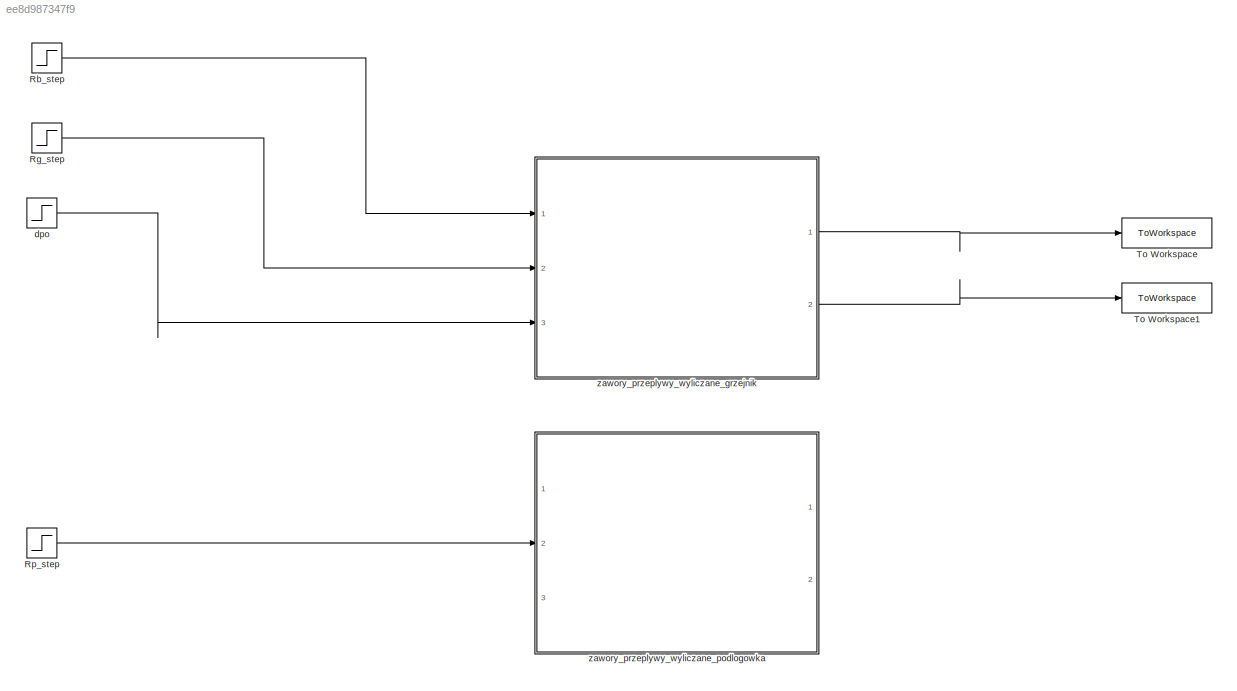
MODEL slx_ee8d987347f9
KIND model
CONFIG AbsTol = auto
CONFIG EnableMultiTasking = off
CONFIG FixedStep = auto
CONFIG MaxStep = auto
CONFIG MinStep = auto
CONFIG RelTol = 1e-3
CONFIG SampleTimeConstraint = Unconstrained
CONFIG SolverName = VariableStepAuto
CONFIG StartTime = 0.0
CONFIG StopTime = 10.0
BLOCK [Step] Rb_step
  After = RzN + dRz_b
  Before = RzN
  SampleTime = 0
  Time = skok_czas
BLOCK [Step] Rg_step
  After = RzN + dRz_g
  Before = RzN
  SampleTime = 0
  Time = skok_czas
BLOCK [Step] Rp_step
  After = RzN + dRz_p
  Before = RzN
  SampleTime = 0
  Time = skok_czas
BLOCK [ToWorkspace] To Workspace
  FixptAsFi = on
  MaxDataPoints = inf
  Ports = [1]
  SampleTime = -1
  VariableName = f_bojler
BLOCK [ToWorkspace] To Workspace1
  FixptAsFi = on
  MaxDataPoints = inf
  Ports = [1]
  SampleTime = -1
  VariableName = f_grzejnik
BLOCK [Step] dpo
  After = dpoN + zmiana_po
  Before = dpoN
  SampleTime = 0
  Time = skok_czas
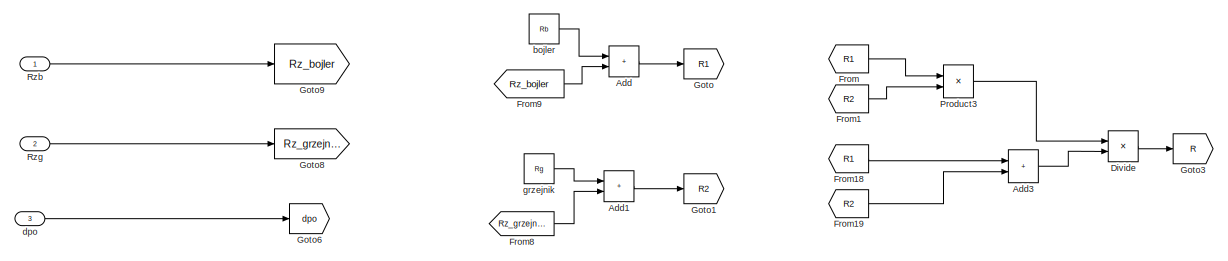
[diagram: zawory_przeplywy_wyliczane_grzejnik - part 1/2, full width, top band]
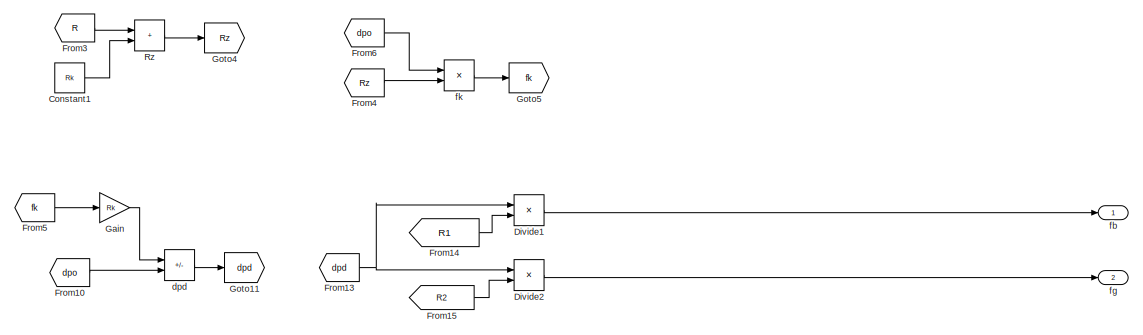
[diagram: zawory_przeplywy_wyliczane_grzejnik - part 2/2, bottom center region]
BLOCK [SubSystem] zawory_przeplywy_wyliczane_grzejnik
  Ports = [3, 2]
  RequestExecContextInheritance = off
BLOCK [Sum] zawory_przeplywy_wyliczane_grzejnik/Add
  IconShape = rectangular
  Ports = [2, 1]
BLOCK [Sum] zawory_przeplywy_wyliczane_grzejnik/Add1
  IconShape = rectangular
  Ports = [2, 1]
BLOCK [Sum] zawory_przeplywy_wyliczane_grzejnik/Add3
  IconShape = rectangular
  Ports = [2, 1]
BLOCK [Constant] zawory_przeplywy_wyliczane_grzejnik/Constant1
  Value = Rk
BLOCK [Product] zawory_przeplywy_wyliczane_grzejnik/Divide
  Inputs = */
  Ports = [2, 1]
BLOCK [Product] zawory_przeplywy_wyliczane_grzejnik/Divide1
  Inputs = */
  Ports = [2, 1]
BLOCK [Product] zawory_przeplywy_wyliczane_grzejnik/Divide2
  Inputs = */
  Ports = [2, 1]
BLOCK [From] zawory_przeplywy_wyliczane_grzejnik/From
  GotoTag = R1
BLOCK [From] zawory_przeplywy_wyliczane_grzejnik/From1
  GotoTag = R2
BLOCK [From] zawory_przeplywy_wyliczane_grzejnik/From10
  GotoTag = dpo
BLOCK [From] zawory_przeplywy_wyliczane_grzejnik/From13
  GotoTag = dpd
BLOCK [From] zawory_przeplywy_wyliczane_grzejnik/From14
  GotoTag = R1
BLOCK [From] zawory_przeplywy_wyliczane_grzejnik/From15
  GotoTag = R2
BLOCK [From] zawory_przeplywy_wyliczane_grzejnik/From18
  GotoTag = R1
BLOCK [From] zawory_przeplywy_wyliczane_grzejnik/From19
  GotoTag = R2
BLOCK [From] zawory_przeplywy_wyliczane_grzejnik/From3
  GotoTag = R
BLOCK [From] zawory_przeplywy_wyliczane_grzejnik/From4
  GotoTag = Rz
BLOCK [From] zawory_przeplywy_wyliczane_grzejnik/From5
  GotoTag = fk
BLOCK [From] zawory_przeplywy_wyliczane_grzejnik/From6
  GotoTag = dpo
BLOCK [From] zawory_przeplywy_wyliczane_grzejnik/From8
  GotoTag = Rz_grzejnik
BLOCK [From] zawory_przeplywy_wyliczane_grzejnik/From9
  GotoTag = Rz_bojler
BLOCK [Gain] zawory_przeplywy_wyliczane_grzejnik/Gain
  Gain = Rk
BLOCK [Goto] zawory_przeplywy_wyliczane_grzejnik/Goto
  GotoTag = R1
BLOCK [Goto] zawory_przeplywy_wyliczane_grzejnik/Goto1
  GotoTag = R2
BLOCK [Goto] zawory_przeplywy_wyliczane_grzejnik/Goto11
  GotoTag = dpd
BLOCK [Goto] zawory_przeplywy_wyliczane_grzejnik/Goto3
  GotoTag = R
BLOCK [Goto] zawory_przeplywy_wyliczane_grzejnik/Goto4
  GotoTag = Rz
BLOCK [Goto] zawory_przeplywy_wyliczane_grzejnik/Goto5
  GotoTag = fk
BLOCK [Goto] zawory_przeplywy_wyliczane_grzejnik/Goto6
  GotoTag = dpo
BLOCK [Goto] zawory_przeplywy_wyliczane_grzejnik/Goto8
  GotoTag = Rz_grzejnik
BLOCK [Goto] zawory_przeplywy_wyliczane_grzejnik/Goto9
  GotoTag = Rz_bojler
BLOCK [Product] zawory_przeplywy_wyliczane_grzejnik/Product3
  Ports = [2, 1]
BLOCK [Sum] zawory_przeplywy_wyliczane_grzejnik/Rz
  IconShape = rectangular
  Ports = [2, 1]
BLOCK [Inport] zawory_przeplywy_wyliczane_grzejnik/Rzb
BLOCK [Inport] zawory_przeplywy_wyliczane_grzejnik/Rzg
  Port = 2
BLOCK [Constant] zawory_przeplywy_wyliczane_grzejnik/bojler
  Value = Rb
BLOCK [Sum] zawory_przeplywy_wyliczane_grzejnik/dpd
  IconShape = rectangular
  Inputs = -+
  Ports = [2, 1]
BLOCK [Inport] zawory_przeplywy_wyliczane_grzejnik/dpo
  Port = 3
BLOCK [Outport] zawory_przeplywy_wyliczane_grzejnik/fb
BLOCK [Outport] zawory_przeplywy_wyliczane_grzejnik/fg
  Port = 2
BLOCK [Product] zawory_przeplywy_wyliczane_grzejnik/fk
  Inputs = */
  Ports = [2, 1]
BLOCK [Constant] zawory_przeplywy_wyliczane_grzejnik/grzejnik
  Value = Rg
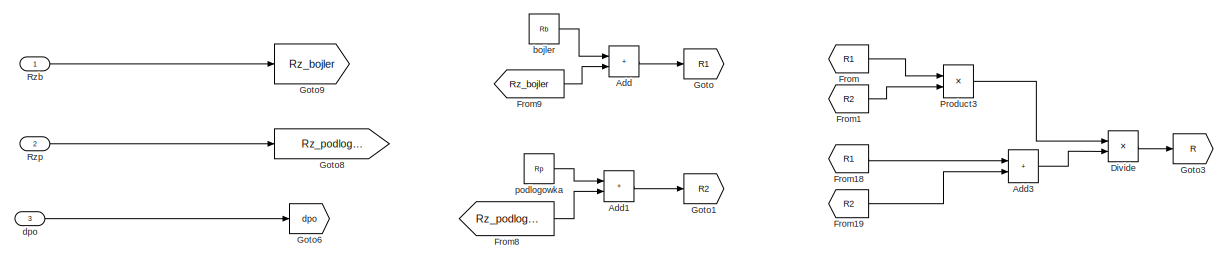
[diagram: zawory_przeplywy_wyliczane_podlogowka - part 1/2, full width, top band]
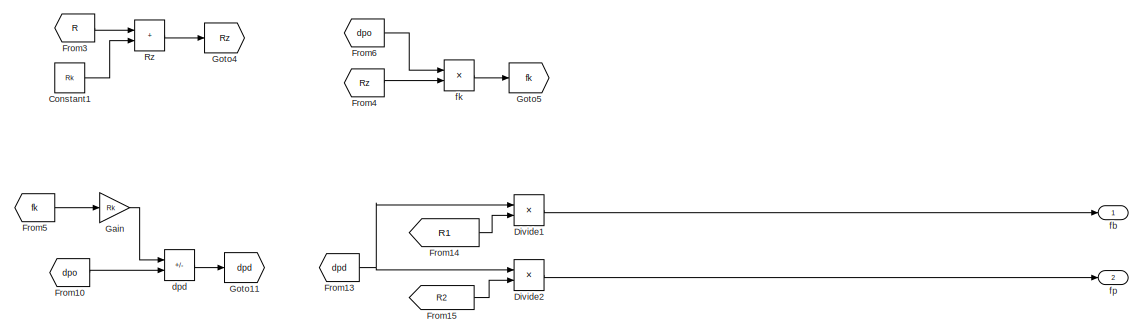
[diagram: zawory_przeplywy_wyliczane_podlogowka - part 2/2, bottom center region]
BLOCK [SubSystem] zawory_przeplywy_wyliczane_podlogowka
  Ports = [3, 2]
  RequestExecContextInheritance = off
BLOCK [Sum] zawory_przeplywy_wyliczane_podlogowka/Add
  IconShape = rectangular
  Ports = [2, 1]
BLOCK [Sum] zawory_przeplywy_wyliczane_podlogowka/Add1
  IconShape = rectangular
  Ports = [2, 1]
BLOCK [Sum] zawory_przeplywy_wyliczane_podlogowka/Add3
  IconShape = rectangular
  Ports = [2, 1]
BLOCK [Constant] zawory_przeplywy_wyliczane_podlogowka/Constant1
  Value = Rk
BLOCK [Product] zawory_przeplywy_wyliczane_podlogowka/Divide
  Inputs = */
  Ports = [2, 1]
BLOCK [Product] zawory_przeplywy_wyliczane_podlogowka/Divide1
  Inputs = */
  Ports = [2, 1]
BLOCK [Product] zawory_przeplywy_wyliczane_podlogowka/Divide2
  Inputs = */
  Ports = [2, 1]
BLOCK [From] zawory_przeplywy_wyliczane_podlogowka/From
  GotoTag = R1
BLOCK [From] zawory_przeplywy_wyliczane_podlogowka/From1
  GotoTag = R2
BLOCK [From] zawory_przeplywy_wyliczane_podlogowka/From10
  GotoTag = dpo
BLOCK [From] zawory_przeplywy_wyliczane_podlogowka/From13
  GotoTag = dpd
BLOCK [From] zawory_przeplywy_wyliczane_podlogowka/From14
  GotoTag = R1
BLOCK [From] zawory_przeplywy_wyliczane_podlogowka/From15
  GotoTag = R2
BLOCK [From] zawory_przeplywy_wyliczane_podlogowka/From18
  GotoTag = R1
BLOCK [From] zawory_przeplywy_wyliczane_podlogowka/From19
  GotoTag = R2
BLOCK [From] zawory_przeplywy_wyliczane_podlogowka/From3
  GotoTag = R
BLOCK [From] zawory_przeplywy_wyliczane_podlogowka/From4
  GotoTag = Rz
BLOCK [From] zawory_przeplywy_wyliczane_podlogowka/From5
  GotoTag = fk
BLOCK [From] zawory_przeplywy_wyliczane_podlogowka/From6
  GotoTag = dpo
BLOCK [From] zawory_przeplywy_wyliczane_podlogowka/From8
  GotoTag = Rz_podlogowka
BLOCK [From] zawory_przeplywy_wyliczane_podlogowka/From9
  GotoTag = Rz_bojler
BLOCK [Gain] zawory_przeplywy_wyliczane_podlogowka/Gain
  Gain = Rk
BLOCK [Goto] zawory_przeplywy_wyliczane_podlogowka/Goto
  GotoTag = R1
BLOCK [Goto] zawory_przeplywy_wyliczane_podlogowka/Goto1
  GotoTag = R2
BLOCK [Goto] zawory_przeplywy_wyliczane_podlogowka/Goto11
  GotoTag = dpd
BLOCK [Goto] zawory_przeplywy_wyliczane_podlogowka/Goto3
  GotoTag = R
BLOCK [Goto] zawory_przeplywy_wyliczane_podlogowka/Goto4
  GotoTag = Rz
BLOCK [Goto] zawory_przeplywy_wyliczane_podlogowka/Goto5
  GotoTag = fk
BLOCK [Goto] zawory_przeplywy_wyliczane_podlogowka/Goto6
  GotoTag = dpo
BLOCK [Goto] zawory_przeplywy_wyliczane_podlogowka/Goto8
  GotoTag = Rz_podlogowka
BLOCK [Goto] zawory_przeplywy_wyliczane_podlogowka/Goto9
  GotoTag = Rz_bojler
BLOCK [Product] zawory_przeplywy_wyliczane_podlogowka/Product3
  Ports = [2, 1]
BLOCK [Sum] zawory_przeplywy_wyliczane_podlogowka/Rz
  IconShape = rectangular
  Ports = [2, 1]
BLOCK [Inport] zawory_przeplywy_wyliczane_podlogowka/Rzb
BLOCK [Inport] zawory_przeplywy_wyliczane_podlogowka/Rzp
  Port = 2
BLOCK [Constant] zawory_przeplywy_wyliczane_podlogowka/bojler
  Value = Rb
BLOCK [Sum] zawory_przeplywy_wyliczane_podlogowka/dpd
  IconShape = rectangular
  Inputs = -+
  Ports = [2, 1]
BLOCK [Inport] zawory_przeplywy_wyliczane_podlogowka/dpo
  Port = 3
BLOCK [Outport] zawory_przeplywy_wyliczane_podlogowka/fb
BLOCK [Product] zawory_przeplywy_wyliczane_podlogowka/fk
  Inputs = */
  Ports = [2, 1]
BLOCK [Outport] zawory_przeplywy_wyliczane_podlogowka/fp
  Port = 2
BLOCK [Constant] zawory_przeplywy_wyliczane_podlogowka/podlogowka
  Value = Rp
LINE Rb_step:1 -> zawory_przeplywy_wyliczane_grzejnik:1
LINE Rg_step:1 -> zawory_przeplywy_wyliczane_grzejnik:2
LINE Rp_step:1 -> zawory_przeplywy_wyliczane_podlogowka:2
LINE dpo:1 -> zawory_przeplywy_wyliczane_grzejnik:3
LINE zawory_przeplywy_wyliczane_grzejnik/Add1:1 -> zawory_przeplywy_wyliczane_grzejnik/Goto1:1
LINE zawory_przeplywy_wyliczane_grzejnik/Add3:1 -> zawory_przeplywy_wyliczane_grzejnik/Divide:2
LINE zawory_przeplywy_wyliczane_grzejnik/Add:1 -> zawory_przeplywy_wyliczane_grzejnik/Goto:1
LINE zawory_przeplywy_wyliczane_grzejnik/Constant1:1 -> zawory_przeplywy_wyliczane_grzejnik/Rz:2
LINE zawory_przeplywy_wyliczane_grzejnik/Divide1:1 -> zawory_przeplywy_wyliczane_grzejnik/fb:1
LINE zawory_przeplywy_wyliczane_grzejnik/Divide2:1 -> zawory_przeplywy_wyliczane_grzejnik/fg:1
LINE zawory_przeplywy_wyliczane_grzejnik/Divide:1 -> zawory_przeplywy_wyliczane_grzejnik/Goto3:1
LINE zawory_przeplywy_wyliczane_grzejnik/From10:1 -> zawory_przeplywy_wyliczane_grzejnik/dpd:2
NET zawory_przeplywy_wyliczane_grzejnik/From13:1 -> zawory_przeplywy_wyliczane_grzejnik/Divide1:1, zawory_przeplywy_wyliczane_grzejnik/Divide2:1
LINE zawory_przeplywy_wyliczane_grzejnik/From14:1 -> zawory_przeplywy_wyliczane_grzejnik/Divide1:2
LINE zawory_przeplywy_wyliczane_grzejnik/From15:1 -> zawory_przeplywy_wyliczane_grzejnik/Divide2:2
LINE zawory_przeplywy_wyliczane_grzejnik/From18:1 -> zawory_przeplywy_wyliczane_grzejnik/Add3:1
LINE zawory_przeplywy_wyliczane_grzejnik/From19:1 -> zawory_przeplywy_wyliczane_grzejnik/Add3:2
LINE zawory_przeplywy_wyliczane_grzejnik/From1:1 -> zawory_przeplywy_wyliczane_grzejnik/Product3:2
LINE zawory_przeplywy_wyliczane_grzejnik/From3:1 -> zawory_przeplywy_wyliczane_grzejnik/Rz:1
LINE zawory_przeplywy_wyliczane_grzejnik/From4:1 -> zawory_przeplywy_wyliczane_grzejnik/fk:2
LINE zawory_przeplywy_wyliczane_grzejnik/From5:1 -> zawory_przeplywy_wyliczane_grzejnik/Gain:1
LINE zawory_przeplywy_wyliczane_grzejnik/From6:1 -> zawory_przeplywy_wyliczane_grzejnik/fk:1
LINE zawory_przeplywy_wyliczane_grzejnik/From8:1 -> zawory_przeplywy_wyliczane_grzejnik/Add1:2
LINE zawory_przeplywy_wyliczane_grzejnik/From9:1 -> zawory_przeplywy_wyliczane_grzejnik/Add:2
LINE zawory_przeplywy_wyliczane_grzejnik/From:1 -> zawory_przeplywy_wyliczane_grzejnik/Product3:1
LINE zawory_przeplywy_wyliczane_grzejnik/Gain:1 -> zawory_przeplywy_wyliczane_grzejnik/dpd:1
LINE zawory_przeplywy_wyliczane_grzejnik/Product3:1 -> zawory_przeplywy_wyliczane_grzejnik/Divide:1
LINE zawory_przeplywy_wyliczane_grzejnik/Rz:1 -> zawory_przeplywy_wyliczane_grzejnik/Goto4:1
LINE zawory_przeplywy_wyliczane_grzejnik/Rzb:1 -> zawory_przeplywy_wyliczane_grzejnik/Goto9:1
LINE zawory_przeplywy_wyliczane_grzejnik/Rzg:1 -> zawory_przeplywy_wyliczane_grzejnik/Goto8:1
LINE zawory_przeplywy_wyliczane_grzejnik/bojler:1 -> zawory_przeplywy_wyliczane_grzejnik/Add:1
LINE zawory_przeplywy_wyliczane_grzejnik/dpd:1 -> zawory_przeplywy_wyliczane_grzejnik/Goto11:1
LINE zawory_przeplywy_wyliczane_grzejnik/dpo:1 -> zawory_przeplywy_wyliczane_grzejnik/Goto6:1
LINE zawory_przeplywy_wyliczane_grzejnik/fk:1 -> zawory_przeplywy_wyliczane_grzejnik/Goto5:1
LINE zawory_przeplywy_wyliczane_grzejnik/grzejnik:1 -> zawory_przeplywy_wyliczane_grzejnik/Add1:1
LINE zawory_przeplywy_wyliczane_grzejnik:1 -> To Workspace:1
LINE zawory_przeplywy_wyliczane_grzejnik:2 -> To Workspace1:1
LINE zawory_przeplywy_wyliczane_podlogowka/Add1:1 -> zawory_przeplywy_wyliczane_podlogowka/Goto1:1
LINE zawory_przeplywy_wyliczane_podlogowka/Add3:1 -> zawory_przeplywy_wyliczane_podlogowka/Divide:2
LINE zawory_przeplywy_wyliczane_podlogowka/Add:1 -> zawory_przeplywy_wyliczane_podlogowka/Goto:1
LINE zawory_przeplywy_wyliczane_podlogowka/Constant1:1 -> zawory_przeplywy_wyliczane_podlogowka/Rz:2
LINE zawory_przeplywy_wyliczane_podlogowka/Divide1:1 -> zawory_przeplywy_wyliczane_podlogowka/fb:1
LINE zawory_przeplywy_wyliczane_podlogowka/Divide2:1 -> zawory_przeplywy_wyliczane_podlogowka/fp:1
LINE zawory_przeplywy_wyliczane_podlogowka/Divide:1 -> zawory_przeplywy_wyliczane_podlogowka/Goto3:1
LINE zawory_przeplywy_wyliczane_podlogowka/From10:1 -> zawory_przeplywy_wyliczane_podlogowka/dpd:2
NET zawory_przeplywy_wyliczane_podlogowka/From13:1 -> zawory_przeplywy_wyliczane_podlogowka/Divide1:1, zawory_przeplywy_wyliczane_podlogowka/Divide2:1
LINE zawory_przeplywy_wyliczane_podlogowka/From14:1 -> zawory_przeplywy_wyliczane_podlogowka/Divide1:2
LINE zawory_przeplywy_wyliczane_podlogowka/From15:1 -> zawory_przeplywy_wyliczane_podlogowka/Divide2:2
LINE zawory_przeplywy_wyliczane_podlogowka/From18:1 -> zawory_przeplywy_wyliczane_podlogowka/Add3:1
LINE zawory_przeplywy_wyliczane_podlogowka/From19:1 -> zawory_przeplywy_wyliczane_podlogowka/Add3:2
LINE zawory_przeplywy_wyliczane_podlogowka/From1:1 -> zawory_przeplywy_wyliczane_podlogowka/Product3:2
LINE zawory_przeplywy_wyliczane_podlogowka/From3:1 -> zawory_przeplywy_wyliczane_podlogowka/Rz:1
LINE zawory_przeplywy_wyliczane_podlogowka/From4:1 -> zawory_przeplywy_wyliczane_podlogowka/fk:2
LINE zawory_przeplywy_wyliczane_podlogowka/From5:1 -> zawory_przeplywy_wyliczane_podlogowka/Gain:1
LINE zawory_przeplywy_wyliczane_podlogowka/From6:1 -> zawory_przeplywy_wyliczane_podlogowka/fk:1
LINE zawory_przeplywy_wyliczane_podlogowka/From8:1 -> zawory_przeplywy_wyliczane_podlogowka/Add1:2
LINE zawory_przeplywy_wyliczane_podlogowka/From9:1 -> zawory_przeplywy_wyliczane_podlogowka/Add:2
LINE zawory_przeplywy_wyliczane_podlogowka/From:1 -> zawory_przeplywy_wyliczane_podlogowka/Product3:1
LINE zawory_przeplywy_wyliczane_podlogowka/Gain:1 -> zawory_przeplywy_wyliczane_podlogowka/dpd:1
LINE zawory_przeplywy_wyliczane_podlogowka/Product3:1 -> zawory_przeplywy_wyliczane_podlogowka/Divide:1
LINE zawory_przeplywy_wyliczane_podlogowka/Rz:1 -> zawory_przeplywy_wyliczane_podlogowka/Goto4:1
LINE zawory_przeplywy_wyliczane_podlogowka/Rzb:1 -> zawory_przeplywy_wyliczane_podlogowka/Goto9:1
LINE zawory_przeplywy_wyliczane_podlogowka/Rzp:1 -> zawory_przeplywy_wyliczane_podlogowka/Goto8:1
LINE zawory_przeplywy_wyliczane_podlogowka/bojler:1 -> zawory_przeplywy_wyliczane_podlogowka/Add:1
LINE zawory_przeplywy_wyliczane_podlogowka/dpd:1 -> zawory_przeplywy_wyliczane_podlogowka/Goto11:1
LINE zawory_przeplywy_wyliczane_podlogowka/dpo:1 -> zawory_przeplywy_wyliczane_podlogowka/Goto6:1
LINE zawory_przeplywy_wyliczane_podlogowka/fk:1 -> zawory_przeplywy_wyliczane_podlogowka/Goto5:1
LINE zawory_przeplywy_wyliczane_podlogowka/podlogowka:1 -> zawory_przeplywy_wyliczane_podlogowka/Add1:1
note: NET lines group one-source signal fan-out (src -> all destinations, sorted); 1:1 wires keep LINE
